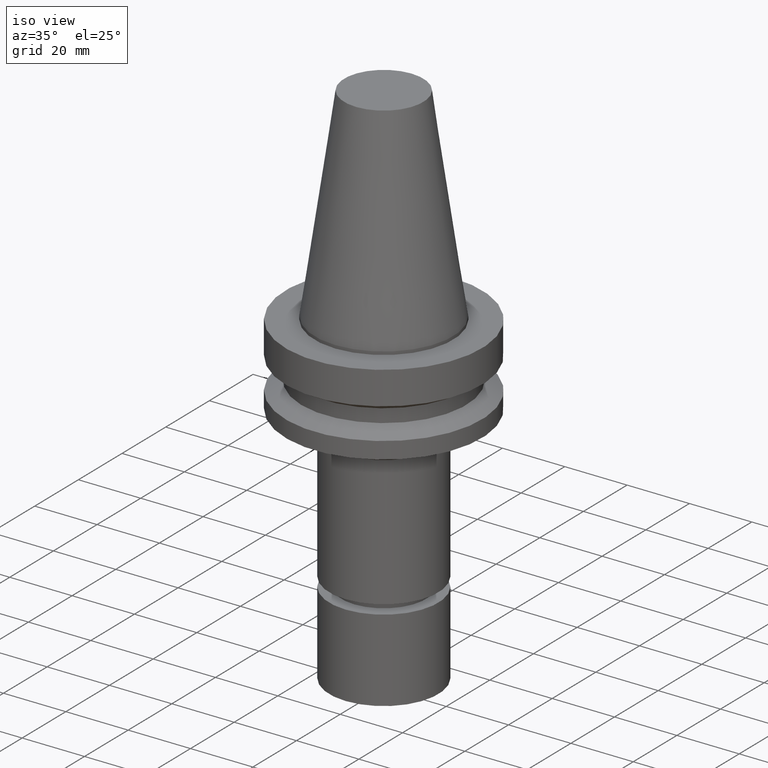
[diagram: clean part render]
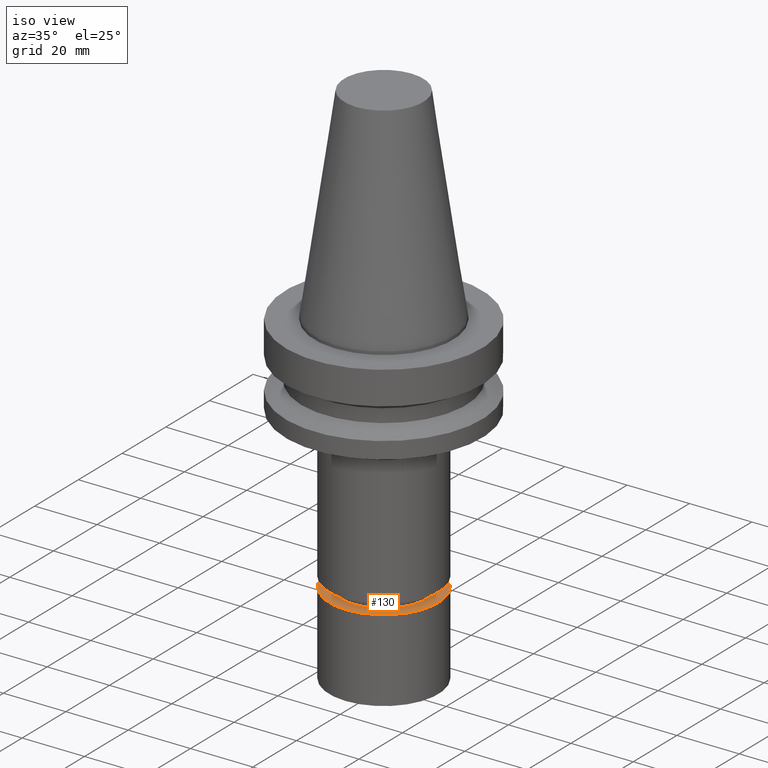
[diagram: same view with one face highlighted and labeled with its STEP entity id]
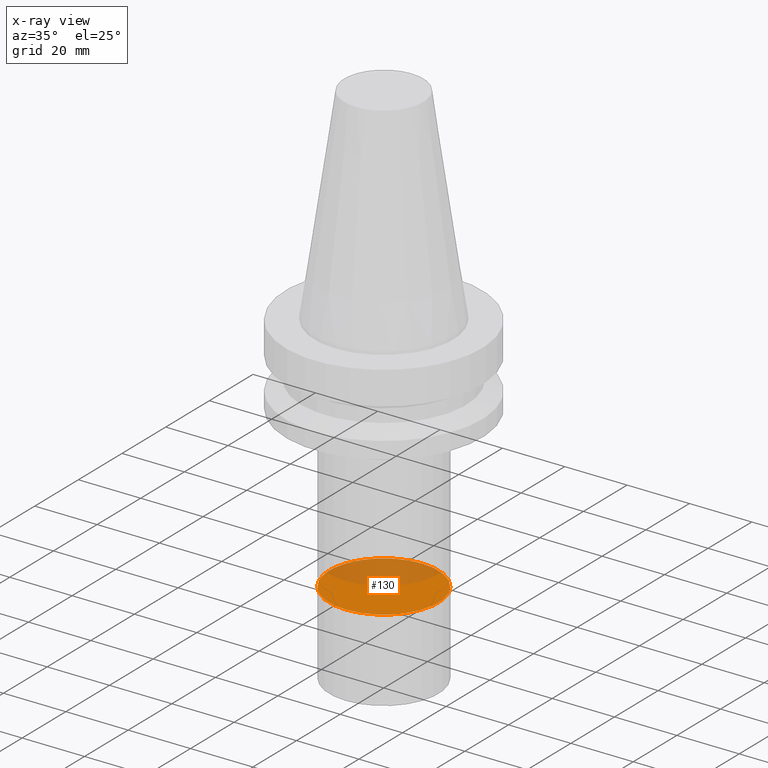
[diagram: x-ray of the same camera — body ghosted, the highlighted face saturated]
A machine part, iso view. The second image highlights one B-rep face of the part: STEP entity #130.
The next image is the same camera in x-ray: the body ghosted, the highlighted face saturated — about 38% of this face is hidden behind the body in this view.
In plain terms, the highlighted planar face has unit normal (-0, -0, 1).
Its self-contained STEP definition (entity closure, byte-faithful):
#124=EDGE_CURVE('Unnamed[1]',#279,#279,#280,.T.);
#130=ADVANCED_FACE('Unnamed[1]',(#288),#289,.T.);
#279=VERTEX_POINT('',#474);
#280=CIRCLE('',#475,17.5);
#288=FACE_OUTER_BOUND('',#485,.T.);
#289=PLANE('',#486);
#474=CARTESIAN_POINT('',(4.80673962098472E-015,17.5,-78.500015258789));
#475=AXIS2_PLACEMENT_3D('',#669,#670,#671);
#485=EDGE_LOOP('',(#679));
#486=AXIS2_PLACEMENT_3D('',#680,#681,#682);
#669=CARTESIAN_POINT('',(4.80673962098472E-015,5.81497021734791E-014,-78.500015258789));
#670=DIRECTION('',(6.12323399573677E-017,-1.31253561610849E-016,-1.0));
#671=DIRECTION('',(3.20980997440177E-033,1.0,-1.31253561610849E-016));
#679=ORIENTED_EDGE('',*,*,#124,.F.);
#680=CARTESIAN_POINT('',(4.80673962098472E-015,8.75000000000003,-78.500015258789));
#681=DIRECTION('',(-6.12323399573677E-017,-1.22464679914735E-016,1.0));
#682=DIRECTION('',(1.23259516440783E-032,-1.0,-1.22464679914735E-016));